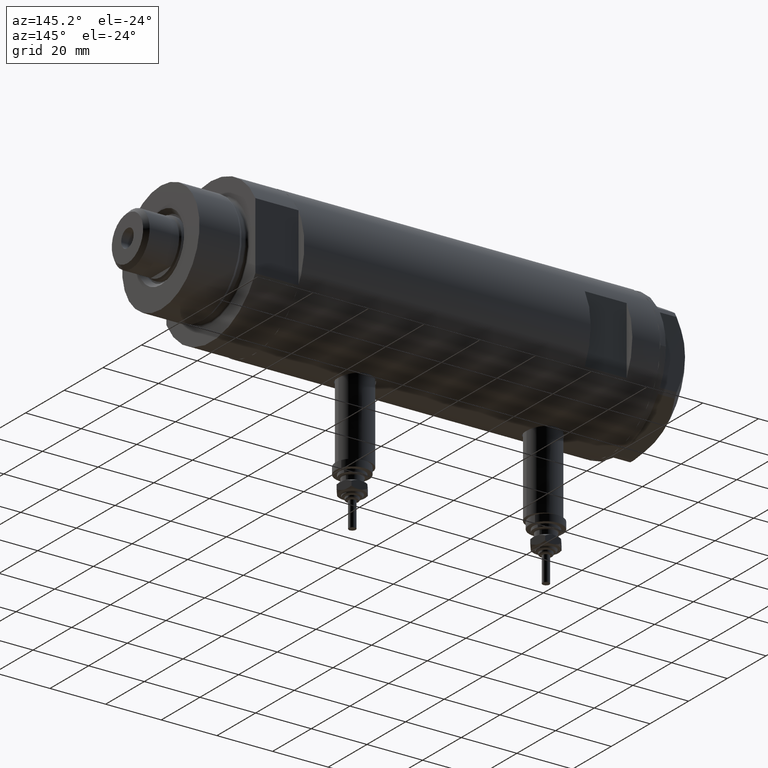
[diagram: clean part render]
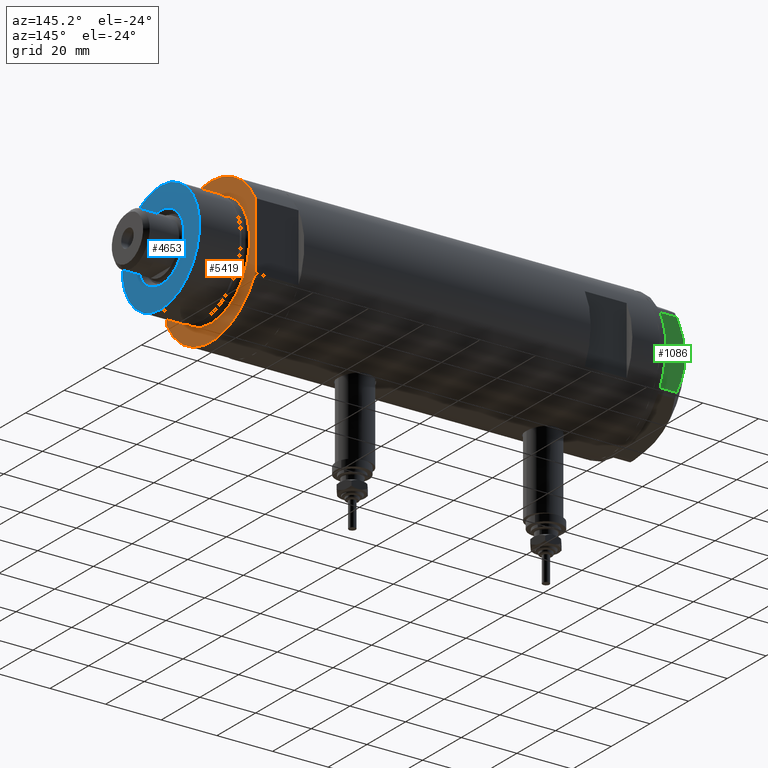
[diagram: same view with three faces highlighted in distinct colors, each labeled with its STEP entity id]
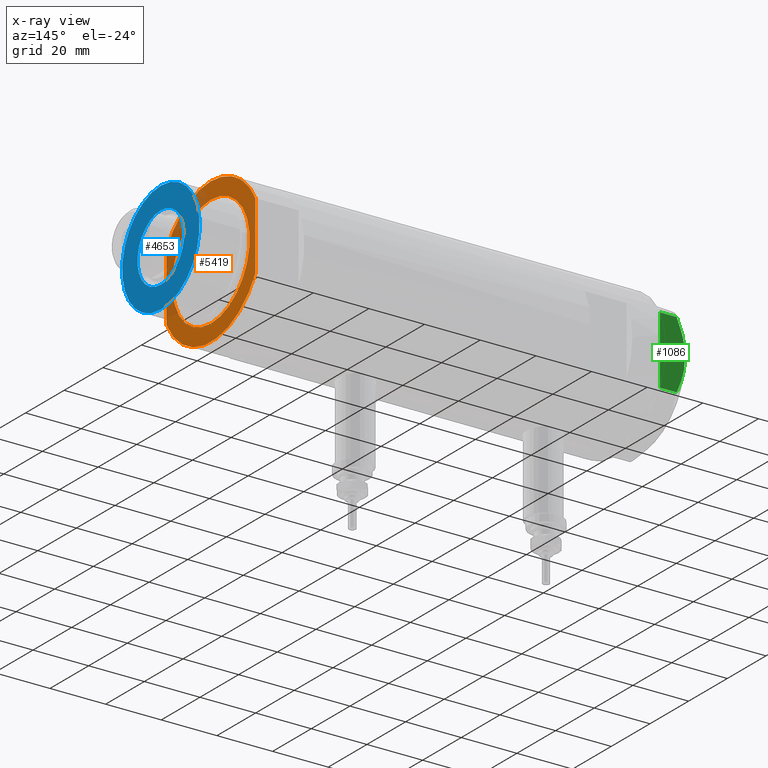
[diagram: x-ray of the same camera — body ghosted, the three highlighted faces saturated]
A machine part, auxiliary view with three faces highlighted in distinct colors.
The next image is the same camera in x-ray (body ghosted, the three faces saturated) — at least one of them is partly hidden behind the body in this view.
Their STEP definitions:

[orange] entity #5419 — the highlighted planar face has unit normal (1, 0, -0).
#120 = ORIENTED_EDGE ( 'NONE', *, *, #6285, .T. ) ;
#134 = LINE ( 'NONE', #3117, #4577 ) ;
#139 = VERTEX_POINT ( 'NONE', #2958 ) ;
#145 = VERTEX_POINT ( 'NONE', #2472 ) ;
#204 = CARTESIAN_POINT ( 'NONE',  ( 0.000000000000000000, 0.000000000000000000, 15.50000000000000000 ) ) ;
#210 = AXIS2_PLACEMENT_3D ( 'NONE', #4188, #2166, #6109 ) ;
#682 = EDGE_CURVE ( 'NONE', #3936, #1309, #5483, .T. ) ;
#845 = EDGE_CURVE ( 'NONE', #4983, #145, #4991, .T. ) ;
#925 = EDGE_CURVE ( 'NONE', #145, #139, #3145, .T. ) ;
#1039 = VERTEX_POINT ( 'NONE', #1865 ) ;
#1089 = AXIS2_PLACEMENT_3D ( 'NONE', #2145, #2113, #5995 ) ;
#1180 = CARTESIAN_POINT ( 'NONE',  ( 12.12435565298214790, 23.00000000000000355, 15.50000000000000000 ) ) ;
#1182 = CARTESIAN_POINT ( 'NONE',  ( 0.000000000000000000, 0.000000000000000000, 15.50000000000000000 ) ) ;
#1184 = AXIS2_PLACEMENT_3D ( 'NONE', #1182, #2762, #4676 ) ;
#1309 = VERTEX_POINT ( 'NONE', #3810 ) ;
#1353 = FACE_BOUND ( 'NONE', #4627, .T. ) ;
#1415 = FACE_OUTER_BOUND ( 'NONE', #2651, .T. ) ;
#1736 = EDGE_CURVE ( 'NONE', #1039, #139, #134, .T. ) ;
#1809 = ORIENTED_EDGE ( 'NONE', *, *, #845, .T. ) ;
#1865 = CARTESIAN_POINT ( 'NONE',  ( 12.12435565298215323, -22.99999999999999645, 15.50000000000000000 ) ) ;
#1890 = ORIENTED_EDGE ( 'NONE', *, *, #925, .T. ) ;
#2018 = CARTESIAN_POINT ( 'NONE',  ( -12.12435565298215145, 23.00000000000000355, 15.50000000000000000 ) ) ;
#2113 = DIRECTION ( 'NONE',  ( 0.000000000000000000, 0.000000000000000000, 1.000000000000000000 ) ) ;
#2145 = CARTESIAN_POINT ( 'NONE',  ( 0.000000000000000000, 0.000000000000000000, 15.50000000000000000 ) ) ;
#2162 = CIRCLE ( 'NONE', #210, 26.00000000000000355 ) ;
#2165 = DIRECTION ( 'NONE',  ( -0.000000000000000000, -0.000000000000000000, -1.000000000000000000 ) ) ;
#2166 = DIRECTION ( 'NONE',  ( 0.000000000000000000, 0.000000000000000000, 1.000000000000000000 ) ) ;
#2253 = AXIS2_PLACEMENT_3D ( 'NONE', #204, #2165, #4684 ) ;
#2260 = ORIENTED_EDGE ( 'NONE', *, *, #5328, .T. ) ;
#2303 = DIRECTION ( 'NONE',  ( 0.000000000000000000, 0.000000000000000000, 1.000000000000000000 ) ) ;
#2472 = CARTESIAN_POINT ( 'NONE',  ( -26.00000000000000355, 0.000000000000000000, 15.50000000000000000 ) ) ;
#2651 = EDGE_LOOP ( 'NONE', ( #4346, #120, #3851, #1809, #1890 ) ) ;
#2762 = DIRECTION ( 'NONE',  ( -0.000000000000000000, -0.000000000000000000, -1.000000000000000000 ) ) ;
#2898 = DIRECTION ( 'NONE',  ( 1.000000000000000000, 0.000000000000000000, -0.000000000000000000 ) ) ;
#2958 = CARTESIAN_POINT ( 'NONE',  ( -12.12435565298215323, -22.99999999999999645, 15.50000000000000000 ) ) ;
#2988 = CARTESIAN_POINT ( 'NONE',  ( 20.00000000000000000, 0.000000000000000000, 15.50000000000000000 ) ) ;
#3117 = CARTESIAN_POINT ( 'NONE',  ( -12.12435565298215145, -22.99999999999999645, 15.50000000000000000 ) ) ;
#3145 = CIRCLE ( 'NONE', #1089, 26.00000000000000355 ) ;
#3274 = VECTOR ( 'NONE', #6248, 1000.000000000000000 ) ;
#3379 = AXIS2_PLACEMENT_3D ( 'NONE', #3729, #3853, #2898 ) ;
#3729 = CARTESIAN_POINT ( 'NONE',  ( 0.000000000000000000, 0.000000000000000000, 15.50000000000000000 ) ) ;
#3781 = CIRCLE ( 'NONE', #2253, 20.00000000000000000 ) ;
#3810 = CARTESIAN_POINT ( 'NONE',  ( -20.00000000000000000, 2.449293598294706513E-15, 15.50000000000000000 ) ) ;
#3851 = ORIENTED_EDGE ( 'NONE', *, *, #5141, .F. ) ;
#3853 = DIRECTION ( 'NONE',  ( 0.000000000000000000, 0.000000000000000000, 1.000000000000000000 ) ) ;
#3936 = VERTEX_POINT ( 'NONE', #2988 ) ;
#3991 = ORIENTED_EDGE ( 'NONE', *, *, #682, .T. ) ;
#4087 = DIRECTION ( 'NONE',  ( -1.000000000000000000, -0.000000000000000000, -0.000000000000000000 ) ) ;
#4117 = CARTESIAN_POINT ( 'NONE',  ( 0.000000000000000000, 0.000000000000000000, 15.50000000000000000 ) ) ;
#4188 = CARTESIAN_POINT ( 'NONE',  ( 0.000000000000000000, 0.000000000000000000, 15.50000000000000000 ) ) ;
#4339 = PLANE ( 'NONE',  #3379 ) ;
#4346 = ORIENTED_EDGE ( 'NONE', *, *, #1736, .F. ) ;
#4455 = LINE ( 'NONE', #2018, #3274 ) ;
#4476 = AXIS2_PLACEMENT_3D ( 'NONE', #4117, #2303, #5550 ) ;
#4577 = VECTOR ( 'NONE', #4087, 1000.000000000000000 ) ;
#4627 = EDGE_LOOP ( 'NONE', ( #3991, #2260 ) ) ;
#4676 = DIRECTION ( 'NONE',  ( 1.000000000000000000, 0.000000000000000000, 0.000000000000000000 ) ) ;
#4684 = DIRECTION ( 'NONE',  ( 1.000000000000000000, 0.000000000000000000, 0.000000000000000000 ) ) ;
#4865 = CARTESIAN_POINT ( 'NONE',  ( -12.12435565298214613, 23.00000000000000355, 15.50000000000000000 ) ) ;
#4983 = VERTEX_POINT ( 'NONE', #4865 ) ;
#4991 = CIRCLE ( 'NONE', #4476, 26.00000000000000355 ) ;
#5141 = EDGE_CURVE ( 'NONE', #4983, #5516, #4455, .T. ) ;
#5328 = EDGE_CURVE ( 'NONE', #1309, #3936, #3781, .T. ) ;
#5419 = ADVANCED_FACE ( 'NONE', ( #1353, #1415 ), #4339, .T. ) ;
#5483 = CIRCLE ( 'NONE', #1184, 20.00000000000000000 ) ;
#5516 = VERTEX_POINT ( 'NONE', #1180 ) ;
#5550 = DIRECTION ( 'NONE',  ( 1.000000000000000000, 0.000000000000000000, 0.000000000000000000 ) ) ;
#5995 = DIRECTION ( 'NONE',  ( 1.000000000000000000, 0.000000000000000000, 0.000000000000000000 ) ) ;
#6109 = DIRECTION ( 'NONE',  ( 1.000000000000000000, 0.000000000000000000, 0.000000000000000000 ) ) ;
#6248 = DIRECTION ( 'NONE',  ( 1.000000000000000000, 0.000000000000000000, 0.000000000000000000 ) ) ;
#6285 = EDGE_CURVE ( 'NONE', #1039, #5516, #2162, .T. ) ;

[blue] entity #4653 — the highlighted planar face has unit normal (1, 0, -0).
#177 = AXIS2_PLACEMENT_3D ( 'NONE', #2723, #4734, #5649 ) ;
#294 = CIRCLE ( 'NONE', #5203, 19.99999999999999645 ) ;
#311 = DIRECTION ( 'NONE',  ( 1.000000000000000000, 0.000000000000000000, -0.000000000000000000 ) ) ;
#670 = EDGE_CURVE ( 'NONE', #3071, #2660, #5884, .T. ) ;
#862 = EDGE_LOOP ( 'NONE', ( #4426, #1690 ) ) ;
#908 = ORIENTED_EDGE ( 'NONE', *, *, #1373, .T. ) ;
#947 = DIRECTION ( 'NONE',  ( 0.000000000000000000, 0.000000000000000000, 1.000000000000000000 ) ) ;
#1094 = DIRECTION ( 'NONE',  ( 0.000000000000000000, 0.000000000000000000, 1.000000000000000000 ) ) ;
#1155 = FACE_OUTER_BOUND ( 'NONE', #2385, .T. ) ;
#1192 = CIRCLE ( 'NONE', #177, 12.05000000000000426 ) ;
#1373 = EDGE_CURVE ( 'NONE', #4953, #5253, #3344, .T. ) ;
#1690 = ORIENTED_EDGE ( 'NONE', *, *, #670, .T. ) ;
#1838 = CARTESIAN_POINT ( 'NONE',  ( 0.000000000000000000, 0.000000000000000000, 33.50000000000000000 ) ) ;
#1859 = CARTESIAN_POINT ( 'NONE',  ( 0.000000000000000000, 0.000000000000000000, 33.50000000000000000 ) ) ;
#1895 = AXIS2_PLACEMENT_3D ( 'NONE', #1859, #4784, #3827 ) ;
#2385 = EDGE_LOOP ( 'NONE', ( #5866, #908 ) ) ;
#2660 = VERTEX_POINT ( 'NONE', #3779 ) ;
#2723 = CARTESIAN_POINT ( 'NONE',  ( 0.000000000000000000, 0.000000000000000000, 33.50000000000000000 ) ) ;
#2814 = DIRECTION ( 'NONE',  ( 1.000000000000000000, 0.000000000000000000, 0.000000000000000000 ) ) ;
#2921 = EDGE_CURVE ( 'NONE', #2660, #3071, #1192, .T. ) ;
#2948 = AXIS2_PLACEMENT_3D ( 'NONE', #4835, #947, #2814 ) ;
#3071 = VERTEX_POINT ( 'NONE', #3170 ) ;
#3139 = CARTESIAN_POINT ( 'NONE',  ( -19.99999999999999645, 0.000000000000000000, 33.50000000000000000 ) ) ;
#3170 = CARTESIAN_POINT ( 'NONE',  ( -12.05000000000000426, 1.475699392972560823E-15, 33.50000000000000000 ) ) ;
#3344 = CIRCLE ( 'NONE', #2948, 19.99999999999999645 ) ;
#3728 = FACE_BOUND ( 'NONE', #862, .T. ) ;
#3779 = CARTESIAN_POINT ( 'NONE',  ( 12.05000000000000426, 0.000000000000000000, 33.50000000000000000 ) ) ;
#3827 = DIRECTION ( 'NONE',  ( 1.000000000000000000, 0.000000000000000000, 0.000000000000000000 ) ) ;
#4426 = ORIENTED_EDGE ( 'NONE', *, *, #2921, .T. ) ;
#4558 = EDGE_CURVE ( 'NONE', #5253, #4953, #294, .T. ) ;
#4653 = ADVANCED_FACE ( 'NONE', ( #3728, #1155 ), #4727, .T. ) ;
#4727 = PLANE ( 'NONE',  #6005 ) ;
#4734 = DIRECTION ( 'NONE',  ( -0.000000000000000000, -0.000000000000000000, -1.000000000000000000 ) ) ;
#4784 = DIRECTION ( 'NONE',  ( -0.000000000000000000, -0.000000000000000000, -1.000000000000000000 ) ) ;
#4835 = CARTESIAN_POINT ( 'NONE',  ( 0.000000000000000000, 0.000000000000000000, 33.50000000000000000 ) ) ;
#4953 = VERTEX_POINT ( 'NONE', #5117 ) ;
#5022 = CARTESIAN_POINT ( 'NONE',  ( 0.000000000000000000, 0.000000000000000000, 33.50000000000000000 ) ) ;
#5117 = CARTESIAN_POINT ( 'NONE',  ( 19.99999999999999645, 2.449293598294706119E-15, 33.50000000000000000 ) ) ;
#5203 = AXIS2_PLACEMENT_3D ( 'NONE', #5022, #1094, #5331 ) ;
#5253 = VERTEX_POINT ( 'NONE', #3139 ) ;
#5331 = DIRECTION ( 'NONE',  ( 1.000000000000000000, 0.000000000000000000, 0.000000000000000000 ) ) ;
#5649 = DIRECTION ( 'NONE',  ( 1.000000000000000000, 0.000000000000000000, 0.000000000000000000 ) ) ;
#5866 = ORIENTED_EDGE ( 'NONE', *, *, #4558, .T. ) ;
#5884 = CIRCLE ( 'NONE', #1895, 12.05000000000000426 ) ;
#6005 = AXIS2_PLACEMENT_3D ( 'NONE', #1838, #6182, #311 ) ;
#6182 = DIRECTION ( 'NONE',  ( 0.000000000000000000, 0.000000000000000000, 1.000000000000000000 ) ) ;

[green] entity #1086 — the highlighted planar face has unit normal (0, -1, 0).
#98 = VECTOR ( 'NONE', #5137, 1000.000000000000000 ) ;
#99 = LINE ( 'NONE', #2551, #6197 ) ;
#272 = CARTESIAN_POINT ( 'NONE',  ( 23.00000000000007461, -12.15905619136115590, 9.000000000000000000 ) ) ;
#335 = CARTESIAN_POINT ( 'NONE',  ( 22.99999999999992184, 2.643615312305318099, 8.854304560636265364 ) ) ;
#604 = CARTESIAN_POINT ( 'NONE',  ( 23.00000000000004263, -8.748091966971204059, 7.396818978284578350 ) ) ;
#698 = LINE ( 'NONE', #2754, #5489 ) ;
#718 = DIRECTION ( 'NONE',  ( 0.000000000000000000, 0.000000000000000000, -1.000000000000000000 ) ) ;
#736 = CARTESIAN_POINT ( 'NONE',  ( 23.00000000000007461, -12.15905619136115590, 0.000000000000000000 ) ) ;
#738 = ORIENTED_EDGE ( 'NONE', *, *, #1613, .T. ) ;
#840 = CARTESIAN_POINT ( 'NONE',  ( 22.99999999999995026, 2.373657066004705010E-13, 9.000000000000000000 ) ) ;
#943 = VERTEX_POINT ( 'NONE', #4574 ) ;
#969 = PLANE ( 'NONE',  #1501 ) ;
#1051 = VERTEX_POINT ( 'NONE', #2876 ) ;
#1086 = ADVANCED_FACE ( 'NONE', ( #2494 ), #969, .F. ) ;
#1201 = CARTESIAN_POINT ( 'NONE',  ( 22.99999999999992539, 2.119709279062085727, 8.908535212173203988 ) ) ;
#1265 = EDGE_CURVE ( 'NONE', #4003, #943, #698, .T. ) ;
#1324 = EDGE_CURVE ( 'NONE', #943, #5069, #4352, .T. ) ;
#1420 = EDGE_CURVE ( 'NONE', #3492, #5125, #1775, .T. ) ;
#1456 = CARTESIAN_POINT ( 'NONE',  ( 22.99999999999982947, 11.68282849742352525, 6.206372352695418648 ) ) ;
#1501 = AXIS2_PLACEMENT_3D ( 'NONE', #5391, #6318, #3484 ) ;
#1613 = EDGE_CURVE ( 'NONE', #1051, #4003, #99, .T. ) ;
#1657 = CARTESIAN_POINT ( 'NONE',  ( 23.00000000000006395, -11.20825071633898240, 6.428173306378455187 ) ) ;
#1669 = LINE ( 'NONE', #3156, #98 ) ;
#1715 = B_SPLINE_CURVE_WITH_KNOTS ( 'NONE', 3,
 ( #4071, #4696, #5669, #1201, #335, #6181, #2842, #3319, #1802, #1935, #5294, #6221, #1456, #2419 ),
 .UNSPECIFIED., .F., .F.,
 ( 4, 2, 2, 2, 2, 2, 4 ),
 ( 0.04777139595992689614, 0.04934380568070229067, 0.05091621540147768521, 0.05406103484302848122, 0.05720585428457927030, 0.05877826400535466483, 0.06035067372613005937 ),
 .UNSPECIFIED. ) ;
#1775 = LINE ( 'NONE', #272, #4483 ) ;
#1802 = CARTESIAN_POINT ( 'NONE',  ( 22.99999999999986500, 8.252113629125430450, 7.581642062680224115 ) ) ;
#1935 = CARTESIAN_POINT ( 'NONE',  ( 22.99999999999985079, 9.734726261263462632, 7.028924700095659617 ) ) ;
#2010 = EDGE_CURVE ( 'NONE', #3492, #4099, #3206, .T. ) ;
#2087 = CARTESIAN_POINT ( 'NONE',  ( 22.99999999999999289, -4.194757081058811288, 8.703000351525204792 ) ) ;
#2142 = ORIENTED_EDGE ( 'NONE', *, *, #5283, .T. ) ;
#2219 = VECTOR ( 'NONE', #2306, 1000.000000000000000 ) ;
#2276 = DIRECTION ( 'NONE',  ( -1.032024811306395780E-14, 1.000000000000000000, 0.000000000000000000 ) ) ;
#2306 = DIRECTION ( 'NONE',  ( 0.000000000000000000, 0.000000000000000000, 1.000000000000000000 ) ) ;
#2381 = CARTESIAN_POINT ( 'NONE',  ( 23.00000000000007461, -12.15905619136115412, 5.983800287807623519 ) ) ;
#2419 = CARTESIAN_POINT ( 'NONE',  ( 22.99999999999982236, 12.15905619136164262, 5.983800287807618190 ) ) ;
#2469 = ORIENTED_EDGE ( 'NONE', *, *, #1420, .T. ) ;
#2494 = FACE_OUTER_BOUND ( 'NONE', #3013, .T. ) ;
#2507 = CARTESIAN_POINT ( 'NONE',  ( 23.00000000000002132, -6.734330413511252722, 8.039389741252669808 ) ) ;
#2551 = CARTESIAN_POINT ( 'NONE',  ( 23.00000000000008527, -13.27905619136115867, 0.000000000000000000 ) ) ;
#2611 = CARTESIAN_POINT ( 'NONE',  ( 22.99999999999997513, -2.122900714017905699, 9.000000000000095923 ) ) ;
#2633 = CARTESIAN_POINT ( 'NONE',  ( 23.00000000000007461, -12.15905619136115412, 5.983800287807623519 ) ) ;
#2754 = CARTESIAN_POINT ( 'NONE',  ( 23.00000000000008527, -13.27905619136115867, 0.000000000000000000 ) ) ;
#2758 = ORIENTED_EDGE ( 'NONE', *, *, #1324, .T. ) ;
#2842 = CARTESIAN_POINT ( 'NONE',  ( 22.99999999999990052, 5.228918809624284236, 8.433337033849852560 ) ) ;
#2876 = CARTESIAN_POINT ( 'NONE',  ( 23.00000000000007461, -12.12435565298200224, 0.000000000000000000 ) ) ;
#3013 = EDGE_LOOP ( 'NONE', ( #4239, #2469, #2142, #738, #3142, #2758, #5415 ) ) ;
#3095 = DIRECTION ( 'NONE',  ( -1.032024811306395780E-14, 1.000000000000000000, 0.000000000000000000 ) ) ;
#3142 = ORIENTED_EDGE ( 'NONE', *, *, #1265, .T. ) ;
#3156 = CARTESIAN_POINT ( 'NONE',  ( 23.00000000000008527, -13.27905619136115867, 0.000000000000000000 ) ) ;
#3204 = EDGE_CURVE ( 'NONE', #4099, #5069, #1715, .T. ) ;
#3206 = B_SPLINE_CURVE_WITH_KNOTS ( 'NONE', 3,
 ( #2633, #1657, #3617, #604, #4489, #3979, #2507, #2087, #2611, #5437 ),
 .UNSPECIFIED., .F., .F.,
 ( 4, 2, 2, 2, 4 ),
 ( 0.03516523594057417712, 0.03831677594541235687, 0.03989254594783144675, 0.04146831595025053663, 0.04777139595992689614 ),
 .UNSPECIFIED. ) ;
#3319 = CARTESIAN_POINT ( 'NONE',  ( 22.99999999999987921, 7.253003311474552461, 7.903276810347635184 ) ) ;
#3484 = DIRECTION ( 'NONE',  ( 1.032024811306395780E-14, -1.000000000000000000, 0.000000000000000000 ) ) ;
#3492 = VERTEX_POINT ( 'NONE', #2381 ) ;
#3617 = CARTESIAN_POINT ( 'NONE',  ( 23.00000000000005684, -10.23890159976104641, 6.840812428290920622 ) ) ;
#3700 = CARTESIAN_POINT ( 'NONE',  ( 22.99999999999982236, 12.15905619136164262, 5.983800287807618190 ) ) ;
#3979 = CARTESIAN_POINT ( 'NONE',  ( 23.00000000000002842, -7.239756182922028493, 7.892186063422852449 ) ) ;
#4003 = VERTEX_POINT ( 'NONE', #5004 ) ;
#4071 = CARTESIAN_POINT ( 'NONE',  ( 22.99999999999995026, 2.373657066004705010E-13, 9.000000000000000000 ) ) ;
#4099 = VERTEX_POINT ( 'NONE', #840 ) ;
#4239 = ORIENTED_EDGE ( 'NONE', *, *, #2010, .F. ) ;
#4352 = LINE ( 'NONE', #6230, #2219 ) ;
#4483 = VECTOR ( 'NONE', #718, 1000.000000000000000 ) ;
#4489 = CARTESIAN_POINT ( 'NONE',  ( 23.00000000000003197, -8.246028007352183664, 7.571131808646910599 ) ) ;
#4574 = CARTESIAN_POINT ( 'NONE',  ( 22.99999999999982236, 12.15905619136163729, 0.000000000000000000 ) ) ;
#4696 = CARTESIAN_POINT ( 'NONE',  ( 22.99999999999994671, 0.5295934231899334099, 9.000000000000095923 ) ) ;
#5004 = CARTESIAN_POINT ( 'NONE',  ( 22.99999999999982592, 12.12435565298247653, 0.000000000000000000 ) ) ;
#5069 = VERTEX_POINT ( 'NONE', #3700 ) ;
#5125 = VERTEX_POINT ( 'NONE', #736 ) ;
#5137 = DIRECTION ( 'NONE',  ( -1.032024811306395780E-14, 1.000000000000000000, 0.000000000000000000 ) ) ;
#5283 = EDGE_CURVE ( 'NONE', #5125, #1051, #1669, .T. ) ;
#5294 = CARTESIAN_POINT ( 'NONE',  ( 22.99999999999983658, 10.22738952213810926, 6.832470313674774864 ) ) ;
#5391 = CARTESIAN_POINT ( 'NONE',  ( 23.00000000000008527, -13.27905619136115867, 9.000000000000000000 ) ) ;
#5415 = ORIENTED_EDGE ( 'NONE', *, *, #3204, .F. ) ;
#5437 = CARTESIAN_POINT ( 'NONE',  ( 22.99999999999995026, 2.373657066004705010E-13, 9.000000000000000000 ) ) ;
#5489 = VECTOR ( 'NONE', #2276, 1000.000000000000000 ) ;
#5669 = CARTESIAN_POINT ( 'NONE',  ( 22.99999999999993960, 1.063773509315896648, 8.981438083606837708 ) ) ;
#6181 = CARTESIAN_POINT ( 'NONE',  ( 22.99999999999990763, 4.203926054642127319, 8.641681223122510858 ) ) ;
#6197 = VECTOR ( 'NONE', #3095, 1000.000000000000000 ) ;
#6221 = CARTESIAN_POINT ( 'NONE',  ( 22.99999999999984368, 11.20155944044832630, 6.421102682632754188 ) ) ;
#6230 = CARTESIAN_POINT ( 'NONE',  ( 22.99999999999982236, 12.15905619136163729, 9.000000000000000000 ) ) ;
#6318 = DIRECTION ( 'NONE',  ( -1.000000000000000000, -1.032024811306395780E-14, 0.000000000000000000 ) ) ;